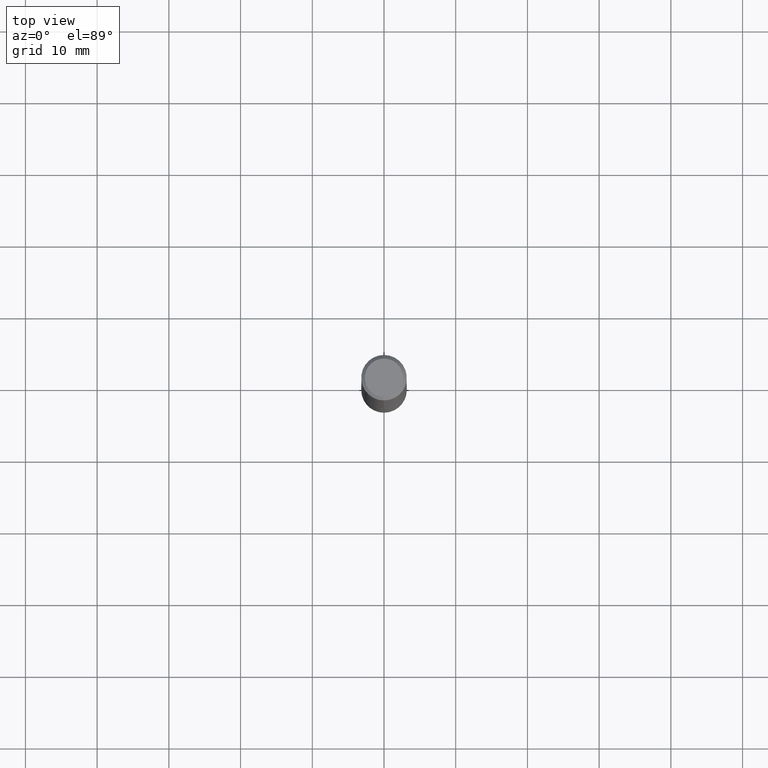
[diagram: clean part render]
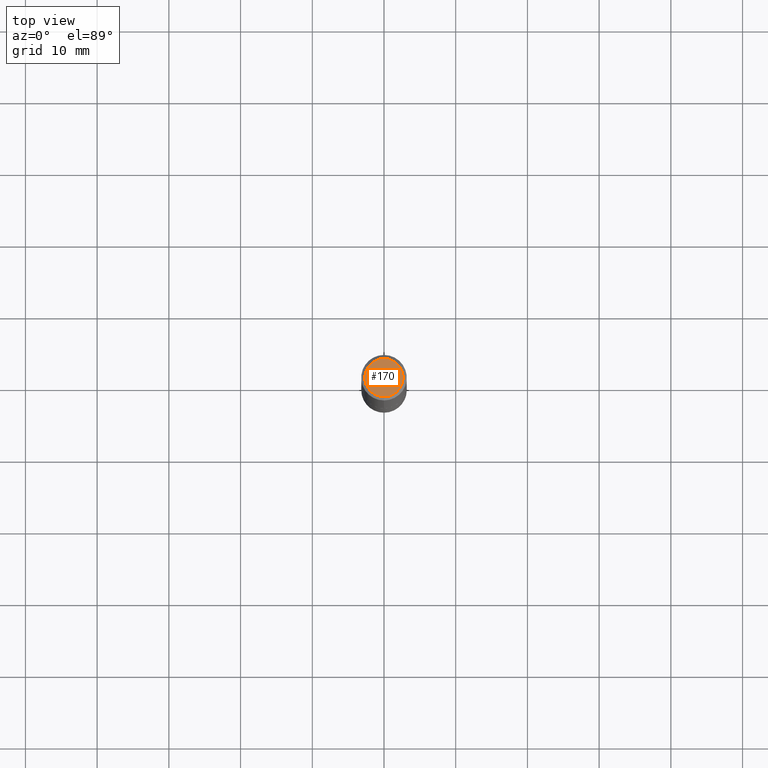
[diagram: same view with one face highlighted and labeled with its STEP entity id]
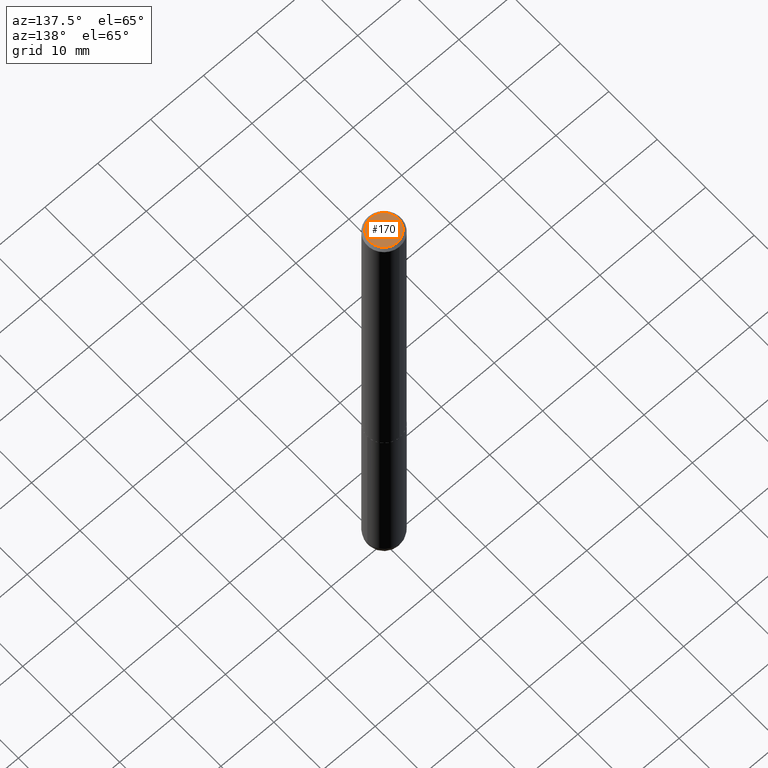
[diagram: same view with one face highlighted and labeled with its STEP entity id]
A machine part, top view. The second image highlights one B-rep face of the part: STEP entity #170.
A second angle (auxiliary view) of the same face is appended — the face is thin or edge-on in the first view.
In plain terms, the highlighted planar face has unit normal (0, -0, -1).
Its self-contained STEP definition (entity closure, byte-faithful):
#1 = DIRECTION ( 'NONE',  ( 6.982962677686265922E-15, 1.000000000000000000, -3.491379954491197687E-15 ) ) ;
#18 = VERTEX_POINT ( 'NONE', #186 ) ;
#39 = AXIS2_PLACEMENT_3D ( 'NONE', #52, #176, #182 ) ;
#52 = CARTESIAN_POINT ( 'NONE',  ( -2.922608238305309478E-45, 4.172468034302132165E-31, 1.195077043658569665E-16 ) ) ;
#69 = DIRECTION ( 'NONE',  ( -2.445539602499712119E-29, 3.491379954491197687E-15, 1.000000000000000000 ) ) ;
#71 = DIRECTION ( 'NONE',  ( -6.982962677686265922E-15, -1.000000000000000000, 3.491379954491197687E-15 ) ) ;
#104 = CARTESIAN_POINT ( 'NONE',  ( -7.889572697437256209E-16, -0.1049999999999999267, 4.861025995874324279E-16 ) ) ;
#137 = DIRECTION ( 'NONE',  ( 2.445539602499711559E-29, -3.491379954491197687E-15, -1.000000000000000000 ) ) ;
#151 = ORIENTED_EDGE ( 'NONE', *, *, #345, .T. ) ;
#170 = ADVANCED_FACE ( 'NONE', ( #380 ), #319, .F. ) ;
#176 = DIRECTION ( 'NONE',  ( -2.445539602499712119E-29, 3.491379954491197687E-15, 1.000000000000000000 ) ) ;
#180 = AXIS2_PLACEMENT_3D ( 'NONE', #226, #137, #1 ) ;
#182 = DIRECTION ( 'NONE',  ( -6.982962677686265922E-15, -1.000000000000000000, 3.491379954491197687E-15 ) ) ;
#186 = CARTESIAN_POINT ( 'NONE',  ( 8.030407079339207309E-16, 0.1049999999999999267, -2.470871908557185934E-16 ) ) ;
#187 = AXIS2_PLACEMENT_3D ( 'NONE', #262, #69, #71 ) ;
#201 = EDGE_CURVE ( 'NONE', #18, #393, #242, .T. ) ;
#226 = CARTESIAN_POINT ( 'NONE',  ( 7.332110811570574327E-16, 0.1049999999999999267, -3.068410430386469287E-16 ) ) ;
#242 = CIRCLE ( 'NONE', #187, 0.1049999999999999267 ) ;
#257 = ORIENTED_EDGE ( 'NONE', *, *, #201, .T. ) ;
#262 = CARTESIAN_POINT ( 'NONE',  ( -2.922608238305309478E-45, 4.172468034302132165E-31, 1.195077043658569665E-16 ) ) ;
#272 = CIRCLE ( 'NONE', #39, 0.1049999999999999267 ) ;
#319 = PLANE ( 'NONE',  #180 ) ;
#325 = EDGE_LOOP ( 'NONE', ( #257, #151 ) ) ;
#345 = EDGE_CURVE ( 'NONE', #393, #18, #272, .T. ) ;
#380 = FACE_OUTER_BOUND ( 'NONE', #325, .T. ) ;
#393 = VERTEX_POINT ( 'NONE', #104 ) ;